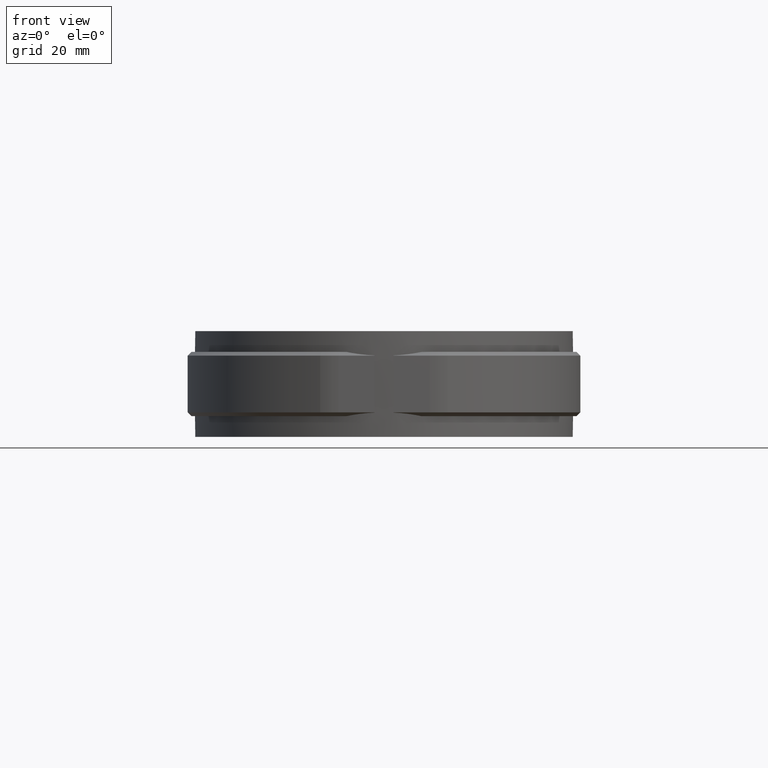
[diagram: clean part render]
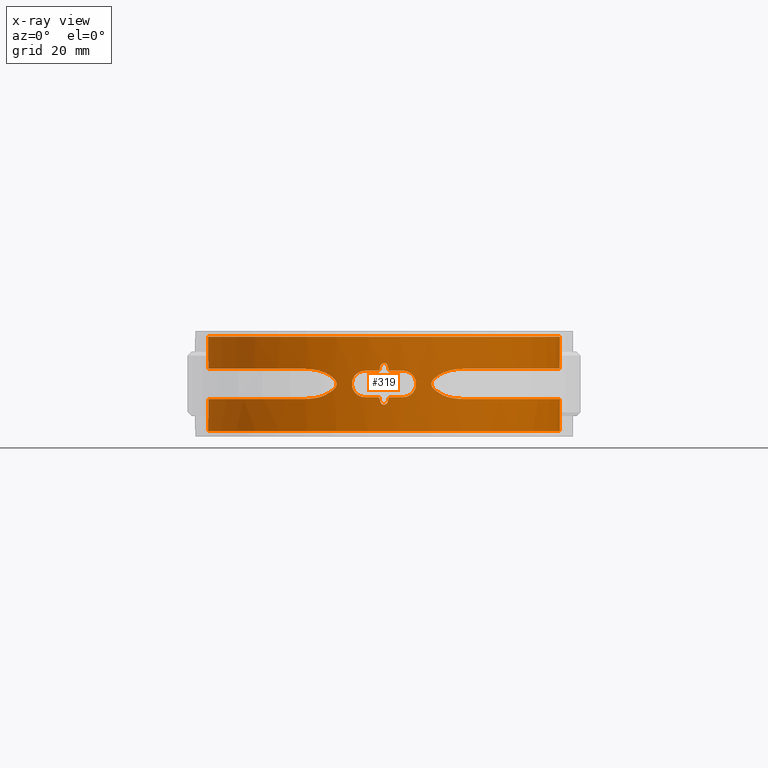
[diagram: x-ray — body ghosted, one internal face saturated and labeled with its STEP entity id]
A machine part, front view, then the same camera in x-ray: the body is ghosted and one INTERNAL B-rep face — a face not visible from any outside direction — is saturated and labeled: STEP entity #319.
In plain terms, the highlighted cylindrical surface (partial cylindrical patch) has radius 46.55 mm, axis along (0, 0, -1).
Its self-contained STEP definition (entity closure, byte-faithful):
#319 = ADVANCED_FACE( '', ( #536, #537 ), #538, .F. );
#536 = FACE_BOUND( '', #990, .T. );
#537 = FACE_OUTER_BOUND( '', #991, .T. );
#538 = CYLINDRICAL_SURFACE( '', #992, 46.5500000000000 );
#990 = EDGE_LOOP( '', ( #2028, #2029, #2030, #2031, #2032, #2033, #2034, #2035, #2036, #2037, #2038, #2039, #2040, #2041, #2042, #2043 ) );
#991 = EDGE_LOOP( '', ( #2044, #2045, #2046, #2047, #2048, #2049, #2050, #2051, #2052, #2053, #2054, #2055, #2056, #2057, #2058, #2059 ) );
#992 = AXIS2_PLACEMENT_3D( '', #2060, #2061, #2062 );
#2028 = ORIENTED_EDGE( '', *, *, #4347, .F. );
#2029 = ORIENTED_EDGE( '', *, *, #4348, .F. );
#2030 = ORIENTED_EDGE( '', *, *, #4349, .F. );
#2031 = ORIENTED_EDGE( '', *, *, #4350, .F. );
#2032 = ORIENTED_EDGE( '', *, *, #4351, .F. );
#2033 = ORIENTED_EDGE( '', *, *, #4352, .F. );
#2034 = ORIENTED_EDGE( '', *, *, #4353, .F. );
#2035 = ORIENTED_EDGE( '', *, *, #4354, .F. );
#2036 = ORIENTED_EDGE( '', *, *, #4355, .F. );
#2037 = ORIENTED_EDGE( '', *, *, #4356, .F. );
#2038 = ORIENTED_EDGE( '', *, *, #4357, .F. );
#2039 = ORIENTED_EDGE( '', *, *, #4358, .F. );
#2040 = ORIENTED_EDGE( '', *, *, #4359, .F. );
#2041 = ORIENTED_EDGE( '', *, *, #4360, .F. );
#2042 = ORIENTED_EDGE( '', *, *, #4344, .F. );
#2043 = ORIENTED_EDGE( '', *, *, #4340, .F. );
#2044 = ORIENTED_EDGE( '', *, *, #4361, .F. );
#2045 = ORIENTED_EDGE( '', *, *, #4362, .F. );
#2046 = ORIENTED_EDGE( '', *, *, #4363, .T. );
#2047 = ORIENTED_EDGE( '', *, *, #4364, .T. );
#2048 = ORIENTED_EDGE( '', *, *, #4365, .T. );
#2049 = ORIENTED_EDGE( '', *, *, #4366, .T. );
#2050 = ORIENTED_EDGE( '', *, *, #4367, .T. );
#2051 = ORIENTED_EDGE( '', *, *, #4368, .T. );
#2052 = ORIENTED_EDGE( '', *, *, #4369, .T. );
#2053 = ORIENTED_EDGE( '', *, *, #4370, .T. );
#2054 = ORIENTED_EDGE( '', *, *, #4371, .F. );
#2055 = ORIENTED_EDGE( '', *, *, #4372, .F. );
#2056 = ORIENTED_EDGE( '', *, *, #4373, .F. );
#2057 = ORIENTED_EDGE( '', *, *, #4374, .F. );
#2058 = ORIENTED_EDGE( '', *, *, #4375, .F. );
#2059 = ORIENTED_EDGE( '', *, *, #4376, .F. );
#2060 = CARTESIAN_POINT( '', ( 0.000000000000000, 0.000000000000000, -12.5000000000000 ) );
#2061 = DIRECTION( '', ( 0.000000000000000, 0.000000000000000, -1.00000000000000 ) );
#2062 = DIRECTION( '', ( -1.00000000000000, 6.16283340149655E-017, 0.000000000000000 ) );
#4340 = EDGE_CURVE( '', #4925, #4926, #4927, .T. );
#4344 = EDGE_CURVE( '', #4926, #4933, #4934, .T. );
#4347 = EDGE_CURVE( '', #4938, #4925, #4939, .T. );
#4348 = EDGE_CURVE( '', #4940, #4938, #4941, .T. );
#4349 = EDGE_CURVE( '', #4942, #4940, #4943, .T. );
#4350 = EDGE_CURVE( '', #4944, #4942, #4945, .T. );
#4351 = EDGE_CURVE( '', #4946, #4944, #4947, .T. );
#4352 = EDGE_CURVE( '', #4948, #4946, #4949, .T. );
#4353 = EDGE_CURVE( '', #4950, #4948, #4951, .T. );
#4354 = EDGE_CURVE( '', #4952, #4950, #4953, .T. );
#4355 = EDGE_CURVE( '', #4954, #4952, #4955, .T. );
#4356 = EDGE_CURVE( '', #4956, #4954, #4957, .T. );
#4357 = EDGE_CURVE( '', #4958, #4956, #4959, .T. );
#4358 = EDGE_CURVE( '', #4960, #4958, #4961, .T. );
#4359 = EDGE_CURVE( '', #4962, #4960, #4963, .T. );
#4360 = EDGE_CURVE( '', #4933, #4962, #4964, .T. );
#4361 = EDGE_CURVE( '', #4965, #4966, #4967, .T. );
#4362 = EDGE_CURVE( '', #4968, #4965, #4969, .T. );
#4363 = EDGE_CURVE( '', #4968, #4970, #4971, .T. );
#4364 = EDGE_CURVE( '', #4970, #4972, #4973, .T. );
#4365 = EDGE_CURVE( '', #4972, #4974, #4975, .T. );
#4366 = EDGE_CURVE( '', #4974, #4976, #4977, .T. );
#4367 = EDGE_CURVE( '', #4976, #4978, #4979, .T. );
#4368 = EDGE_CURVE( '', #4978, #4980, #4981, .T. );
#4369 = EDGE_CURVE( '', #4980, #4982, #4983, .T. );
#4370 = EDGE_CURVE( '', #4982, #4984, #4985, .T. );
#4371 = EDGE_CURVE( '', #4986, #4984, #4987, .T. );
#4372 = EDGE_CURVE( '', #4988, #4986, #4989, .T. );
#4373 = EDGE_CURVE( '', #4990, #4988, #4991, .T. );
#4374 = EDGE_CURVE( '', #4992, #4990, #4993, .T. );
#4375 = EDGE_CURVE( '', #4994, #4992, #4995, .T. );
#4376 = EDGE_CURVE( '', #4966, #4994, #4996, .T. );
#4925 = VERTEX_POINT( '', #5897 );
#4926 = VERTEX_POINT( '', #5898 );
#4927 = ELLIPSE( '', #5899, 212.061219288384, 46.5500000000000 );
#4933 = VERTEX_POINT( '', #5907 );
#4934 = B_SPLINE_CURVE_WITH_KNOTS( '', 3, ( #5908, #5909, #5910, #5911, #5912, #5913 ), .UNSPECIFIED., .F., .F., ( 4, 2, 4 ), ( 0.000000000000000, 0.000335867643567258, 0.000671735287134516 ), .UNSPECIFIED. );
#4938 = VERTEX_POINT( '', #5923 );
#4939 = B_SPLINE_CURVE_WITH_KNOTS( '', 3, ( #5924, #5925, #5926, #5927, #5928, #5929, #5930, #5931, #5932, #5933 ), .UNSPECIFIED., .F., .F., ( 4, 2, 2, 2, 4 ), ( 9.26342742239755E-019, 0.000671567789988738, 0.00134313557997747, 0.00201470336996621, 0.00268627115995495 ), .UNSPECIFIED. );
#4940 = VERTEX_POINT( '', #5934 );
#4941 = ELLIPSE( '', #5935, 212.061327465736, 46.5500000000000 );
#4942 = VERTEX_POINT( '', #5936 );
#4943 = B_SPLINE_CURVE_WITH_KNOTS( '', 3, ( #5937, #5938, #5939, #5940, #5941, #5942 ), .UNSPECIFIED., .F., .F., ( 4, 2, 4 ), ( 5.70418124105125E-018, 0.000335865768424954, 0.000671731536849902 ), .UNSPECIFIED. );
#4944 = VERTEX_POINT( '', #5943 );
#4945 = CIRCLE( '', #5944, 46.5500000000000 );
#4946 = VERTEX_POINT( '', #5945 );
#4947 = B_SPLINE_CURVE_WITH_KNOTS( '', 3, ( #5946, #5947, #5948, #5949, #5950, #5951, #5952, #5953, #5954, #5955, #5956, #5957, #5958, #5959, #5960, #5961, #5962, #5963, #5964, #5965, #5966, #5967, #5968, #5969, #5970, #5971, #5972, #5973, #5974, #5975, #5976, #5977, #5978, #5979 ), .UNSPECIFIED., .F., .F., ( 4, 2, 2, 2, 2, 2, 2, 2, 2, 2, 2, 2, 2, 2, 2, 2, 4 ), ( 8.67361737988404E-019, 0.000687134771177364, 0.00137426954235473, 0.00206140431353209, 0.00274853908470945, 0.00343567385588681, 0.00412280862706418, 0.00480994339824154, 0.00549707816941891, 0.00618421294059627, 0.00687134771177364, 0.00755848248295100, 0.00824561725412837, 0.00893275202530574, 0.00961988679648311, 0.0103070215676605, 0.0109941563388378 ), .UNSPECIFIED. );
#4948 = VERTEX_POINT( '', #5980 );
#4949 = CIRCLE( '', #5981, 46.5500000000000 );
#4950 = VERTEX_POINT( '', #5982 );
#4951 = B_SPLINE_CURVE_WITH_KNOTS( '', 3, ( #5983, #5984, #5985, #5986, #5987, #5988 ), .UNSPECIFIED., .F., .F., ( 4, 2, 4 ), ( 0.000000000000000, 0.000335867643567312, 0.000671735287134625 ), .UNSPECIFIED. );
#4952 = VERTEX_POINT( '', #5989 );
#4953 = ELLIPSE( '', #5990, 212.061219288399, 46.5500000000000 );
#4954 = VERTEX_POINT( '', #5991 );
#4955 = B_SPLINE_CURVE_WITH_KNOTS( '', 3, ( #5992, #5993, #5994, #5995, #5996, #5997, #5998, #5999, #6000, #6001 ), .UNSPECIFIED., .F., .F., ( 4, 2, 2, 2, 4 ), ( 1.08420217248550E-019, 0.000671567789988737, 0.00134313557997748, 0.00201470336996621, 0.00268627115995495 ), .UNSPECIFIED. );
#4956 = VERTEX_POINT( '', #6002 );
#4957 = ELLIPSE( '', #6003, 212.061327465781, 46.5500000000000 );
#4958 = VERTEX_POINT( '', #6004 );
#4959 = B_SPLINE_CURVE_WITH_KNOTS( '', 3, ( #6005, #6006, #6007, #6008, #6009, #6010 ), .UNSPECIFIED., .F., .F., ( 4, 2, 4 ), ( 6.50521303491303E-019, 0.000335865768424969, 0.000671731536849938 ), .UNSPECIFIED. );
#4960 = VERTEX_POINT( '', #6011 );
#4961 = CIRCLE( '', #6012, 46.5500000000000 );
#4962 = VERTEX_POINT( '', #6013 );
#4963 = B_SPLINE_CURVE_WITH_KNOTS( '', 3, ( #6014, #6015, #6016, #6017, #6018, #6019, #6020, #6021, #6022, #6023, #6024, #6025, #6026, #6027, #6028, #6029, #6030, #6031, #6032, #6033, #6034, #6035, #6036, #6037, #6038, #6039, #6040, #6041, #6042, #6043, #6044, #6045, #6046, #6047 ), .UNSPECIFIED., .F., .F., ( 4, 2, 2, 2, 2, 2, 2, 2, 2, 2, 2, 2, 2, 2, 2, 2, 4 ), ( 8.67361737988404E-019, 0.000687134771177362, 0.00137426954235472, 0.00206140431353208, 0.00274853908470944, 0.00343567385588681, 0.00412280862706417, 0.00480994339824153, 0.00549707816941889, 0.00618421294059625, 0.00687134771177361, 0.00755848248295097, 0.00824561725412833, 0.00893275202530569, 0.00961988679648305, 0.0103070215676604, 0.0109941563388378 ), .UNSPECIFIED. );
#4964 = CIRCLE( '', #6048, 46.5500000000000 );
#4965 = VERTEX_POINT( '', #6049 );
#4966 = VERTEX_POINT( '', #6050 );
#4967 = B_SPLINE_CURVE_WITH_KNOTS( '', 3, ( #6051, #6052, #6053, #6054, #6055, #6056, #6057, #6058, #6059, #6060, #6061, #6062, #6063, #6064, #6065, #6066, #6067, #6068, #6069, #6070, #6071, #6072, #6073, #6074, #6075, #6076, #6077, #6078, #6079, #6080, #6081, #6082, #6083, #6084, #6085, #6086, #6087, #6088, #6089, #6090, #6091, #6092, #6093, #6094, #6095, #6096, #6097, #6098, #6099, #6100, #6101, #6102, #6103, #6104, #6105, #6106 ), .UNSPECIFIED., .F., .F., ( 4, 2, 2, 2, 2, 2, 2, 2, 2, 2, 2, 2, 2, 2, 2, 2, 2, 2, 2, 2, 2, 2, 2, 2, 2, 2, 2, 4 ), ( 0.000000000000000, 0.00739241022400136, 0.00924051278000170, 0.0110886153360020, 0.0147848204480027, 0.0221772306720042, 0.0258734357840049, 0.0295696408960056, 0.0369620511200070, 0.0406582562320077, 0.0425063587880080, 0.0443544613440084, 0.0517468715680098, 0.0554430766800105, 0.0591392817920112, 0.0665316920160126, 0.0702278971280133, 0.0720759996840137, 0.0739241022400140, 0.0813165124640154, 0.0887089226880168, 0.0924051278000175, 0.0961013329120182, 0.103493743136020, 0.105341845692020, 0.107189948248020, 0.110886153360021, 0.118278563584022 ), .UNSPECIFIED. );
#4968 = VERTEX_POINT( '', #6107 );
#4969 = LINE( '', #6108, #6109 );
#4970 = VERTEX_POINT( '', #6110 );
#4971 = CIRCLE( '', #6111, 46.5500000000000 );
#4972 = VERTEX_POINT( '', #6112 );
#4973 = LINE( '', #6113, #6114 );
#4974 = VERTEX_POINT( '', #6115 );
#4975 = B_SPLINE_CURVE_WITH_KNOTS( '', 3, ( #6116, #6117, #6118, #6119, #6120, #6121, #6122, #6123, #6124, #6125, #6126, #6127, #6128, #6129, #6130, #6131, #6132, #6133, #6134, #6135, #6136, #6137, #6138, #6139, #6140, #6141, #6142, #6143, #6144, #6145, #6146, #6147, #6148, #6149, #6150, #6151, #6152, #6153, #6154, #6155, #6156, #6157, #6158, #6159, #6160, #6161, #6162, #6163, #6164, #6165, #6166, #6167, #6168, #6169 ), .UNSPECIFIED., .F., .F., ( 4, 2, 2, 2, 2, 2, 2, 2, 2, 2, 2, 2, 2, 2, 2, 2, 2, 2, 2, 2, 2, 2, 2, 2, 2, 2, 4 ), ( 0.00461311502875988, 0.00831044911400739, 0.0120077831992549, 0.0194024513697499, 0.0230997854549974, 0.0249484524976212, 0.0267971195402449, 0.0341917877107399, 0.0415864558812349, 0.0489811240517299, 0.0563757922222249, 0.0582244592648486, 0.0600731263074724, 0.0637704603927199, 0.0711651285632149, 0.0748624626484624, 0.0785597967337099, 0.0859544649042049, 0.0878031319468287, 0.0896517989894524, 0.0933491330746999, 0.100743801245195, 0.104441135330442, 0.108138469415690, 0.115533137586185, 0.119230471671432, 0.122927805756680 ), .UNSPECIFIED. );
#4976 = VERTEX_POINT( '', #6170 );
#4977 = B_SPLINE_CURVE_WITH_KNOTS( '', 3, ( #6171, #6172, #6173, #6174, #6175, #6176, #6177, #6178, #6179, #6180 ), .UNSPECIFIED., .F., .F., ( 4, 2, 2, 2, 4 ), ( 0.000000000000000, 0.00149632237868849, 0.00299264475737698, 0.00448896713606547, 0.00598528951475396 ), .UNSPECIFIED. );
#4978 = VERTEX_POINT( '', #6181 );
#4979 = B_SPLINE_CURVE_WITH_KNOTS( '', 3, ( #6182, #6183, #6184, #6185, #6186, #6187, #6188, #6189, #6190, #6191, #6192, #6193, #6194, #6195, #6196, #6197, #6198, #6199, #6200, #6201, #6202, #6203, #6204, #6205, #6206, #6207, #6208, #6209, #6210, #6211 ), .UNSPECIFIED., .F., .F., ( 4, 2, 2, 2, 2, 2, 2, 2, 2, 2, 2, 2, 2, 2, 4 ), ( 0.000000000000000, 0.00112011935832342, 0.00224023871664684, 0.00280029839580855, 0.00336035807497026, 0.00392041775413197, 0.00420044759371283, 0.00448047743329368, 0.00476050727287454, 0.00504053711245539, 0.00560059679161710, 0.00616065647077881, 0.00672071614994052, 0.00784083550826393, 0.00896095486658735 ), .UNSPECIFIED. );
#4980 = VERTEX_POINT( '', #6212 );
#4981 = B_SPLINE_CURVE_WITH_KNOTS( '', 3, ( #6213, #6214, #6215, #6216, #6217, #6218, #6219, #6220, #6221, #6222 ), .UNSPECIFIED., .F., .F., ( 4, 2, 2, 2, 4 ), ( 0.000000000000000, 0.00149513425753580, 0.00299026851507159, 0.00448540277260739, 0.00598053703014319 ), .UNSPECIFIED. );
#4982 = VERTEX_POINT( '', #6223 );
#4983 = B_SPLINE_CURVE_WITH_KNOTS( '', 3, ( #6224, #6225, #6226, #6227, #6228, #6229, #6230, #6231, #6232, #6233, #6234, #6235, #6236, #6237, #6238, #6239, #6240, #6241, #6242, #6243, #6244, #6245, #6246, #6247, #6248, #6249, #6250, #6251, #6252, #6253, #6254, #6255, #6256, #6257, #6258, #6259, #6260, #6261, #6262, #6263, #6264, #6265, #6266, #6267, #6268, #6269, #6270, #6271, #6272, #6273, #6274, #6275, #6276, #6277, #6278, #6279 ), .UNSPECIFIED., .F., .F., ( 4, 2, 2, 2, 2, 2, 2, 2, 2, 2, 2, 2, 2, 2, 2, 2, 2, 2, 2, 2, 2, 2, 2, 2, 2, 2, 2, 4 ), ( 0.000000000000000, 0.00739525285955345, 0.00924406607444182, 0.0110928792893302, 0.0147905057191069, 0.0221857585786603, 0.0258833850084370, 0.0295810114382137, 0.0369762642977672, 0.0406738907275439, 0.0425227039424322, 0.0443715171573206, 0.0517667700168740, 0.0554643964466508, 0.0591620228764275, 0.0665572757359809, 0.0702549021657576, 0.0721037153806460, 0.0739525285955343, 0.0813477814550877, 0.0887430343146411, 0.0924406607444178, 0.0961382871741946, 0.103533540033748, 0.105382353248636, 0.107231166463525, 0.110928792893301, 0.118324045752855 ), .UNSPECIFIED. );
#4984 = VERTEX_POINT( '', #6280 );
#4985 = LINE( '', #6281, #6282 );
#4986 = VERTEX_POINT( '', #6283 );
#4987 = CIRCLE( '', #6284, 46.5500000000000 );
#4988 = VERTEX_POINT( '', #6285 );
#4989 = LINE( '', #6286, #6287 );
#4990 = VERTEX_POINT( '', #6288 );
#4991 = B_SPLINE_CURVE_WITH_KNOTS( '', 3, ( #6289, #6290, #6291, #6292, #6293, #6294, #6295, #6296, #6297, #6298, #6299, #6300, #6301, #6302, #6303, #6304, #6305, #6306, #6307, #6308, #6309, #6310, #6311, #6312, #6313, #6314, #6315, #6316, #6317, #6318, #6319, #6320, #6321, #6322, #6323, #6324, #6325, #6326, #6327, #6328, #6329, #6330, #6331, #6332, #6333, #6334, #6335, #6336, #6337, #6338, #6339, #6340, #6341, #6342, #6343, #6344 ), .UNSPECIFIED., .F., .F., ( 4, 2, 2, 2, 2, 2, 2, 2, 2, 2, 2, 2, 2, 2, 2, 2, 2, 2, 2, 2, 2, 2, 2, 2, 2, 2, 2, 4 ), ( 0.000000000000000, 0.00739525285955343, 0.00924406607444180, 0.0110928792893302, 0.0147905057191069, 0.0221857585786603, 0.0258833850084371, 0.0295810114382138, 0.0369762642977672, 0.0406738907275439, 0.0425227039424323, 0.0443715171573206, 0.0517667700168741, 0.0554643964466508, 0.0591620228764275, 0.0665572757359810, 0.0702549021657577, 0.0721037153806461, 0.0739525285955344, 0.0813477814550878, 0.0887430343146412, 0.0924406607444179, 0.0961382871741946, 0.103533540033748, 0.105382353248636, 0.107231166463525, 0.110928792893301, 0.118324045752855 ), .UNSPECIFIED. );
#4992 = VERTEX_POINT( '', #6345 );
#4993 = B_SPLINE_CURVE_WITH_KNOTS( '', 3, ( #6346, #6347, #6348, #6349, #6350, #6351, #6352, #6353, #6354, #6355 ), .UNSPECIFIED., .F., .F., ( 4, 2, 2, 2, 4 ), ( 0.000000000000000, 0.00149513425753580, 0.00299026851507159, 0.00448540277260739, 0.00598053703014319 ), .UNSPECIFIED. );
#4994 = VERTEX_POINT( '', #6356 );
#4995 = B_SPLINE_CURVE_WITH_KNOTS( '', 3, ( #6357, #6358, #6359, #6360, #6361, #6362, #6363, #6364, #6365, #6366, #6367, #6368, #6369, #6370, #6371, #6372, #6373, #6374, #6375, #6376, #6377, #6378, #6379, #6380, #6381, #6382, #6383, #6384, #6385, #6386 ), .UNSPECIFIED., .F., .F., ( 4, 2, 2, 2, 2, 2, 2, 2, 2, 2, 2, 2, 2, 2, 4 ), ( 0.000000000000000, 0.00112011935832342, 0.00224023871664684, 0.00280029839580855, 0.00336035807497026, 0.00392041775413197, 0.00420044759371283, 0.00448047743329368, 0.00476050727287454, 0.00504053711245539, 0.00560059679161710, 0.00616065647077881, 0.00672071614994052, 0.00784083550826393, 0.00896095486658735 ), .UNSPECIFIED. );
#4996 = B_SPLINE_CURVE_WITH_KNOTS( '', 3, ( #6387, #6388, #6389, #6390, #6391, #6392, #6393, #6394, #6395, #6396 ), .UNSPECIFIED., .F., .F., ( 4, 2, 2, 2, 4 ), ( 0.000000000000000, 0.00149632237868849, 0.00299264475737698, 0.00448896713606547, 0.00598528951475396 ), .UNSPECIFIED. );
#5897 = CARTESIAN_POINT( '', ( -0.975609757981835, -46.5397753067216, -4.71951218674743 ) );
#5898 = CARTESIAN_POINT( '', ( -1.16219500000001, -46.5354897124977, -3.89024399999999 ) );
#5899 = AXIS2_PLACEMENT_3D( '', #8972, #8973, #8974 );
#5907 = CARTESIAN_POINT( '', ( -1.64999999999996, -46.5207480593337, -3.49999999999999 ) );
#5908 = CARTESIAN_POINT( '', ( -1.16219500000001, -46.5354897124977, -3.89024399999999 ) );
#5909 = CARTESIAN_POINT( '', ( -1.18712420397179, -46.5348671210865, -3.77944753568268 ) );
#5910 = CARTESIAN_POINT( '', ( -1.24903650881785, -46.5333243537973, -3.68044081312041 ) );
#5911 = CARTESIAN_POINT( '', ( -1.42636241158842, -46.5282264640173, -3.53861514028637 ) );
#5912 = CARTESIAN_POINT( '', ( -1.53650490240857, -46.5247735085975, -3.49999999951289 ) );
#5913 = CARTESIAN_POINT( '', ( -1.64999999999996, -46.5207480593337, -3.50000000000000 ) );
#5923 = CARTESIAN_POINT( '', ( 0.975609999999998, -46.5397753016481, -4.71951200000000 ) );
#5924 = CARTESIAN_POINT( '', ( 0.975609999999998, -46.5397753016482, -4.71951200000000 ) );
#5925 = CARTESIAN_POINT( '', ( 0.925763811660467, -46.5408202237495, -4.94105072272846 ) );
#5926 = CARTESIAN_POINT( '', ( 0.802006513264279, -46.5434284211128, -5.13901837189036 ) );
#5927 = CARTESIAN_POINT( '', ( 0.447391365684778, -46.5481877692836, -5.42271325637587 ) );
#5928 = CARTESIAN_POINT( '', ( 0.227079142415347, -46.5500000006644, -5.50000005706915 ) );
#5929 = CARTESIAN_POINT( '', ( -0.227079414810581, -46.5499999993356, -5.49999994979800 ) );
#5930 = CARTESIAN_POINT( '', ( -0.447400186077757, -46.5481876660238, -5.42270759232652 ) );
#5931 = CARTESIAN_POINT( '', ( -0.802005630293599, -46.5434284178428, -5.13901736590035 ) );
#5932 = CARTESIAN_POINT( '', ( -0.925763527024686, -46.5408202294570, -4.94105090087471 ) );
#5933 = CARTESIAN_POINT( '', ( -0.975609757981835, -46.5397753067216, -4.71951218674743 ) );
#5934 = CARTESIAN_POINT( '', ( 1.16219512100914, -46.5354897094755, -3.89024390662629 ) );
#5935 = AXIS2_PLACEMENT_3D( '', #8981, #8982, #8983 );
#5936 = CARTESIAN_POINT( '', ( 1.65000000000002, -46.5207480593337, -3.49999999999999 ) );
#5937 = CARTESIAN_POINT( '', ( 1.65000000000002, -46.5207480593337, -3.50000000000002 ) );
#5938 = CARTESIAN_POINT( '', ( 1.53650492986797, -46.5247735076236, -3.50000000000002 ) );
#5939 = CARTESIAN_POINT( '', ( 1.42636231025923, -46.5282264652820, -3.53861554993225 ) );
#5940 = CARTESIAN_POINT( '', ( 1.24903833890374, -46.5333243028331, -3.68043909286674 ) );
#5941 = CARTESIAN_POINT( '', ( 1.18712431856231, -46.5348671181598, -3.77944746861569 ) );
#5942 = CARTESIAN_POINT( '', ( 1.16219512100914, -46.5354897094755, -3.89024390662629 ) );
#5943 = CARTESIAN_POINT( '', ( 5.00000000000004, -46.2806925185870, -3.49999999999999 ) );
#5944 = AXIS2_PLACEMENT_3D( '', #8984, #8985, #8986 );
#5945 = CARTESIAN_POINT( '', ( 5.00000000000004, -46.2806925185870, 3.50000000000001 ) );
#5946 = CARTESIAN_POINT( '', ( 5.00000000000005, -46.2806925185870, 3.50000000000000 ) );
#5947 = CARTESIAN_POINT( '', ( 5.23101424725128, -46.2557345680164, 3.50000000000000 ) );
#5948 = CARTESIAN_POINT( '', ( 5.45798688627984, -46.2294648070248, 3.47735417320556 ) );
#5949 = CARTESIAN_POINT( '', ( 5.90423554468161, -46.1745930120415, 3.38882016543352 ) );
#5950 = CARTESIAN_POINT( '', ( 6.12575625310973, -46.1456732050923, 3.32189913692397 ) );
#5951 = CARTESIAN_POINT( '', ( 6.54860903964377, -46.0875662719305, 3.14708612205728 ) );
#5952 = CARTESIAN_POINT( '', ( 6.74913194916253, -46.0585339927889, 3.04014833053229 ) );
#5953 = CARTESIAN_POINT( '', ( 7.12869562067263, -46.0013155722736, 2.78758307530890 ) );
#5954 = CARTESIAN_POINT( '', ( 7.30868713323899, -45.9729526051980, 2.64044435126905 ) );
#5955 = CARTESIAN_POINT( '', ( 7.63173027795680, -45.9204308757645, 2.31861562045488 ) );
#5956 = CARTESIAN_POINT( '', ( 7.77679320521374, -45.8959793147898, 2.14295842760768 ) );
#5957 = CARTESIAN_POINT( '', ( 8.03324278500659, -45.8517877533408, 1.76133175017698 ) );
#5958 = CARTESIAN_POINT( '', ( 8.14289242043931, -45.8323441894987, 1.55705653946266 ) );
#5959 = CARTESIAN_POINT( '', ( 8.31863855610540, -45.8007720835402, 1.13526911675996 ) );
#5960 = CARTESIAN_POINT( '', ( 8.38623987158776, -45.7883787014959, 0.914916126865256 ) );
#5961 = CARTESIAN_POINT( '', ( 8.47729974651430, -45.7716072724474, 0.460519771584721 ) );
#5962 = CARTESIAN_POINT( '', ( 8.49980279502249, -45.7674103755657, 0.232266715548746 ) );
#5963 = CARTESIAN_POINT( '', ( 8.50019464909964, -45.7673375997242, -0.226284885958611 ) );
#5964 = CARTESIAN_POINT( '', ( 8.47736465282512, -45.7715947026079, -0.459162923809960 ) );
#5965 = CARTESIAN_POINT( '', ( 8.38737811139793, -45.7881696674285, -0.910255485971627 ) );
#5966 = CARTESIAN_POINT( '', ( 8.32081330275416, -45.8003775084187, -1.12917817948343 ) );
#5967 = CARTESIAN_POINT( '', ( 8.14459446912271, -45.8320422288435, -1.55382430716390 ) );
#5968 = CARTESIAN_POINT( '', ( 8.03450063987222, -45.8515640224239, -1.75894670944728 ) );
#5969 = CARTESIAN_POINT( '', ( 7.78038144641326, -45.8953678314364, -2.13812223048664 ) );
#5970 = CARTESIAN_POINT( '', ( 7.63547307573153, -45.9198155370585, -2.31464134562974 ) );
#5971 = CARTESIAN_POINT( '', ( 7.30865900001749, -45.9729639208650, -2.64071515189402 ) );
#5972 = CARTESIAN_POINT( '', ( 7.13210339171438, -46.0007847819863, -2.78493446076323 ) );
#5973 = CARTESIAN_POINT( '', ( 6.75376402296731, -46.0578524344199, -3.03743914761301 ) );
#5974 = CARTESIAN_POINT( '', ( 6.54961913161978, -46.0874221809350, -3.14658187784906 ) );
#5975 = CARTESIAN_POINT( '', ( 6.12700537486969, -46.1455068147413, -3.32146892987199 ) );
#5976 = CARTESIAN_POINT( '', ( 5.90948262079245, -46.1739247487791, -3.38746115223729 ) );
#5977 = CARTESIAN_POINT( '', ( 5.46202983718599, -46.2289902724368, -3.47686354707661 ) );
#5978 = CARTESIAN_POINT( '', ( 5.23101208102020, -46.2557348020482, -3.50000000000002 ) );
#5979 = CARTESIAN_POINT( '', ( 5.00000000000004, -46.2806925185871, -3.50000000000002 ) );
#5980 = CARTESIAN_POINT( '', ( 1.65000000000005, -46.5207480593337, 3.50000000000000 ) );
#5981 = AXIS2_PLACEMENT_3D( '', #8987, #8988, #8989 );
#5982 = CARTESIAN_POINT( '', ( 1.16219499999999, -46.5354897124976, 3.89024400000000 ) );
#5983 = CARTESIAN_POINT( '', ( 1.16219499999999, -46.5354897124977, 3.89024400000000 ) );
#5984 = CARTESIAN_POINT( '', ( 1.18712420397179, -46.5348671210865, 3.77944753568268 ) );
#5985 = CARTESIAN_POINT( '', ( 1.24903650881786, -46.5333243537973, 3.68044081312039 ) );
#5986 = CARTESIAN_POINT( '', ( 1.42636241158847, -46.5282264640173, 3.53861514028634 ) );
#5987 = CARTESIAN_POINT( '', ( 1.53650490240864, -46.5247735085975, 3.49999999951287 ) );
#5988 = CARTESIAN_POINT( '', ( 1.65000000000005, -46.5207480593337, 3.49999999999999 ) );
#5989 = CARTESIAN_POINT( '', ( 0.975609757981830, -46.5397753067216, 4.71951218674745 ) );
#5990 = AXIS2_PLACEMENT_3D( '', #8990, #8991, #8992 );
#5991 = CARTESIAN_POINT( '', ( -0.975610000000002, -46.5397753016482, 4.71951200000000 ) );
#5992 = CARTESIAN_POINT( '', ( -0.975610000000002, -46.5397753016482, 4.71951200000000 ) );
#5993 = CARTESIAN_POINT( '', ( -0.925763811660473, -46.5408202237495, 4.94105072272847 ) );
#5994 = CARTESIAN_POINT( '', ( -0.802006513264287, -46.5434284211128, 5.13901837189037 ) );
#5995 = CARTESIAN_POINT( '', ( -0.447391365684787, -46.5481877692836, 5.42271325637588 ) );
#5996 = CARTESIAN_POINT( '', ( -0.227079142415355, -46.5500000006644, 5.50000005706916 ) );
#5997 = CARTESIAN_POINT( '', ( 0.227079414810572, -46.5499999993356, 5.49999994979801 ) );
#5998 = CARTESIAN_POINT( '', ( 0.447400186077750, -46.5481876660238, 5.42270759232653 ) );
#5999 = CARTESIAN_POINT( '', ( 0.802005630293593, -46.5434284178428, 5.13901736590036 ) );
#6000 = CARTESIAN_POINT( '', ( 0.925763527024679, -46.5408202294570, 4.94105090087473 ) );
#6001 = CARTESIAN_POINT( '', ( 0.975609757981829, -46.5397753067216, 4.71951218674745 ) );
#6002 = CARTESIAN_POINT( '', ( -1.16219512100910, -46.5354897094755, 3.89024390662629 ) );
#6003 = AXIS2_PLACEMENT_3D( '', #8993, #8994, #8995 );
#6004 = CARTESIAN_POINT( '', ( -1.65000000000002, -46.5207480593337, 3.50000000000001 ) );
#6005 = CARTESIAN_POINT( '', ( -1.65000000000002, -46.5207480593337, 3.50000000000000 ) );
#6006 = CARTESIAN_POINT( '', ( -1.53650492986795, -46.5247735076236, 3.50000000000000 ) );
#6007 = CARTESIAN_POINT( '', ( -1.42636231025921, -46.5282264652820, 3.53861554993223 ) );
#6008 = CARTESIAN_POINT( '', ( -1.24903833890371, -46.5333243028331, 3.68043909286673 ) );
#6009 = CARTESIAN_POINT( '', ( -1.18712431856228, -46.5348671181598, 3.77944746861568 ) );
#6010 = CARTESIAN_POINT( '', ( -1.16219512100910, -46.5354897094755, 3.89024390662629 ) );
#6011 = CARTESIAN_POINT( '', ( -4.99999999999995, -46.2806925185871, 3.50000000000000 ) );
#6012 = AXIS2_PLACEMENT_3D( '', #8996, #8997, #8998 );
#6013 = CARTESIAN_POINT( '', ( -4.99999999999995, -46.2806925185871, -3.49999999999999 ) );
#6014 = CARTESIAN_POINT( '', ( -4.99999999999995, -46.2806925185871, -3.49999999999999 ) );
#6015 = CARTESIAN_POINT( '', ( -5.23101424725119, -46.2557345680164, -3.49999999999999 ) );
#6016 = CARTESIAN_POINT( '', ( -5.45798688627975, -46.2294648070249, -3.47735417320555 ) );
#6017 = CARTESIAN_POINT( '', ( -5.90423554468151, -46.1745930120415, -3.38882016543350 ) );
#6018 = CARTESIAN_POINT( '', ( -6.12575625310963, -46.1456732050924, -3.32189913692395 ) );
#6019 = CARTESIAN_POINT( '', ( -6.54860903964367, -46.0875662719305, -3.14708612205726 ) );
#6020 = CARTESIAN_POINT( '', ( -6.74913194916243, -46.0585339927889, -3.04014833053228 ) );
#6021 = CARTESIAN_POINT( '', ( -7.12869562067252, -46.0013155722736, -2.78758307530889 ) );
#6022 = CARTESIAN_POINT( '', ( -7.30868713323888, -45.9729526051980, -2.64044435126904 ) );
#6023 = CARTESIAN_POINT( '', ( -7.63173027795669, -45.9204308757646, -2.31861562045487 ) );
#6024 = CARTESIAN_POINT( '', ( -7.77679320521363, -45.8959793147898, -2.14295842760767 ) );
#6025 = CARTESIAN_POINT( '', ( -8.03324278500648, -45.8517877533408, -1.76133175017697 ) );
#6026 = CARTESIAN_POINT( '', ( -8.14289242043920, -45.8323441894987, -1.55705653946265 ) );
#6027 = CARTESIAN_POINT( '', ( -8.31863855610529, -45.8007720835402, -1.13526911675996 ) );
#6028 = CARTESIAN_POINT( '', ( -8.38623987158765, -45.7883787014959, -0.914916126865256 ) );
#6029 = CARTESIAN_POINT( '', ( -8.47729974651419, -45.7716072724474, -0.460519771584723 ) );
#6030 = CARTESIAN_POINT( '', ( -8.49980279502238, -45.7674103755657, -0.232266715548749 ) );
#6031 = CARTESIAN_POINT( '', ( -8.50019464909952, -45.7673375997242, 0.226284885958605 ) );
#6032 = CARTESIAN_POINT( '', ( -8.47736465282501, -45.7715947026079, 0.459162923809951 ) );
#6033 = CARTESIAN_POINT( '', ( -8.38737811139782, -45.7881696674285, 0.910255485971615 ) );
#6034 = CARTESIAN_POINT( '', ( -8.32081330275405, -45.8003775084188, 1.12917817948342 ) );
#6035 = CARTESIAN_POINT( '', ( -8.14459446912259, -45.8320422288435, 1.55382430716388 ) );
#6036 = CARTESIAN_POINT( '', ( -8.03450063987211, -45.8515640224239, 1.75894670944726 ) );
#6037 = CARTESIAN_POINT( '', ( -7.78038144641316, -45.8953678314364, 2.13812223048662 ) );
#6038 = CARTESIAN_POINT( '', ( -7.63547307573142, -45.9198155370585, 2.31464134562972 ) );
#6039 = CARTESIAN_POINT( '', ( -7.30865900001738, -45.9729639208651, 2.64071515189400 ) );
#6040 = CARTESIAN_POINT( '', ( -7.13210339171428, -46.0007847819863, 2.78493446076321 ) );
#6041 = CARTESIAN_POINT( '', ( -6.75376402296721, -46.0578524344199, 3.03743914761299 ) );
#6042 = CARTESIAN_POINT( '', ( -6.54961913161968, -46.0874221809350, 3.14658187784904 ) );
#6043 = CARTESIAN_POINT( '', ( -6.12700537486959, -46.1455068147413, 3.32146892987196 ) );
#6044 = CARTESIAN_POINT( '', ( -5.90948262079235, -46.1739247487791, 3.38746115223727 ) );
#6045 = CARTESIAN_POINT( '', ( -5.46202983718589, -46.2289902724368, 3.47686354707659 ) );
#6046 = CARTESIAN_POINT( '', ( -5.23101208102011, -46.2557348020482, 3.49999999999999 ) );
#6047 = CARTESIAN_POINT( '', ( -4.99999999999995, -46.2806925185871, 3.49999999999999 ) );
#6048 = AXIS2_PLACEMENT_3D( '', #8999, #9000, #9001 );
#6049 = CARTESIAN_POINT( '', ( 6.57618567103939, 46.0831453138782, -3.99547789453363 ) );
#6050 = CARTESIAN_POINT( '', ( 20.9286488140006, -41.5799738154699, -3.99749411284495 ) );
#6051 = CARTESIAN_POINT( '', ( 6.57618567103939, 46.0831453138782, -3.99547789453363 ) );
#6052 = CARTESIAN_POINT( '', ( 9.03007763106053, 45.7329684968260, -3.99397550587316 ) );
#6053 = CARTESIAN_POINT( '', ( 11.4349335122546, 45.1910634176170, -3.99297811472632 ) );
#6054 = CARTESIAN_POINT( '', ( 14.3805562555051, 44.2773369271465, -3.99377441429057 ) );
#6055 = CARTESIAN_POINT( '', ( 14.9666404066915, 44.0827038345628, -3.99401518021754 ) );
#6056 = CARTESIAN_POINT( '', ( 16.1326765619879, 43.6694612901885, -3.99461234227233 ) );
#6057 = CARTESIAN_POINT( '', ( 16.7132801183845, 43.4505485279413, -3.99496925358459 ) );
#6058 = CARTESIAN_POINT( '', ( 18.4335184960048, 42.7625244184172, -3.99608325858104 ) );
#6059 = CARTESIAN_POINT( '', ( 19.5553595893905, 42.2609760911114, -3.99689817422306 ) );
#6060 = CARTESIAN_POINT( '', ( 22.8478307663134, 40.6309965992631, -3.99805808182009 ) );
#6061 = CARTESIAN_POINT( '', ( 24.9458520686048, 39.3779915789106, -3.99627556149784 ) );
#6062 = CARTESIAN_POINT( '', ( 27.9466987309229, 37.2476756871808, -3.99467976945148 ) );
#6063 = CARTESIAN_POINT( '', ( 28.9226241460492, 36.4954815554455, -3.99431753541406 ) );
#6064 = CARTESIAN_POINT( '', ( 30.8235126338302, 34.9048625605316, -3.99422994355109 ) );
#6065 = CARTESIAN_POINT( '', ( 31.7358122132083, 34.0770500746909, -3.99450535032410 ) );
#6066 = CARTESIAN_POINT( '', ( 34.3617511578624, 31.4990639839532, -3.99594849957518 ) );
#6067 = CARTESIAN_POINT( '', ( 35.9650968863893, 29.6549093891415, -3.99787450118166 ) );
#6068 = CARTESIAN_POINT( '', ( 38.1502477906098, 26.7013282393679, -3.99718837088350 ) );
#6069 = CARTESIAN_POINT( '', ( 38.8418193240744, 25.6854336089159, -3.99648971199078 ) );
#6070 = CARTESIAN_POINT( '', ( 39.8225112222335, 24.1133071555025, -3.99547269593863 ) );
#6071 = CARTESIAN_POINT( '', ( 40.1404795432186, 23.5802048498777, -3.99513541023542 ) );
#6072 = CARTESIAN_POINT( '', ( 40.7521181978722, 22.5066439325902, -3.99455364906564 ) );
#6073 = CARTESIAN_POINT( '', ( 41.0463395848321, 21.9653871597278, -3.99430857407785 ) );
#6074 = CARTESIAN_POINT( '', ( 42.4603507377291, 19.2370667584880, -3.99343648326424 ) );
#6075 = CARTESIAN_POINT( '', ( 43.4099147327430, 16.9843032867978, -3.99416618747375 ) );
#6076 = CARTESIAN_POINT( '', ( 44.5657646454425, 13.5015299272903, -3.99614209631281 ) );
#6077 = CARTESIAN_POINT( '', ( 44.9060908560450, 12.3232539251376, -3.99688912487059 ) );
#6078 = CARTESIAN_POINT( '', ( 45.4949390093118, 9.93126919450842, -3.99763975321300 ) );
#6079 = CARTESIAN_POINT( '', ( 45.7439109135268, 8.71296139361782, -3.99744433822754 ) );
#6080 = CARTESIAN_POINT( '', ( 46.3392893475279, 5.06429564811052, -3.99581618573708 ) );
#6081 = CARTESIAN_POINT( '', ( 46.5401247727459, 2.62577617584301, -3.99405667683790 ) );
#6082 = CARTESIAN_POINT( '', ( 46.5544078574001, -1.04089511667609, -3.99375645471957 ) );
#6083 = CARTESIAN_POINT( '', ( 46.5111138711700, -2.26460791254344, -3.99398674170197 ) );
#6084 = CARTESIAN_POINT( '', ( 46.3729430905892, -4.10244619106728, -3.99470918688378 ) );
#6085 = CARTESIAN_POINT( '', ( 46.3146669435425, -4.71543757263763, -3.99500908599356 ) );
#6086 = CARTESIAN_POINT( '', ( 46.1733052170228, -5.94218906871573, -3.99566089352775 ) );
#6087 = CARTESIAN_POINT( '', ( 46.0899894530313, -6.55723223796914, -3.99601348828128 ) );
#6088 = CARTESIAN_POINT( '', ( 45.6141861750645, -9.61037345985058, -3.99764735618785 ) );
#6089 = CARTESIAN_POINT( '', ( 45.0448356084065, -11.9931877383663, -3.99744639585155 ) );
#6090 = CARTESIAN_POINT( '', ( 43.5415686627391, -16.6434841756177, -3.99501822717447 ) );
#6091 = CARTESIAN_POINT( '', ( 42.6076663022531, -18.9109708890668, -3.99394065808847 ) );
#6092 = CARTESIAN_POINT( '', ( 40.9220479357443, -22.2221146533687, -3.99452150650273 ) );
#6093 = CARTESIAN_POINT( '', ( 40.3184595575993, -23.2987162885596, -3.99502143158973 ) );
#6094 = CARTESIAN_POINT( '', ( 39.0349279067849, -25.3906038743601, -3.99621292266187 ) );
#6095 = CARTESIAN_POINT( '', ( 38.3542419186732, -26.4073418015268, -3.99690354125413 ) );
#6096 = CARTESIAN_POINT( '', ( 36.1969076007786, -29.3710516811370, -3.99798761667306 ) );
#6097 = CARTESIAN_POINT( '', ( 34.6057186585321, -31.2320718295634, -3.99620536808695 ) );
#6098 = CARTESIAN_POINT( '', ( 32.4195737713050, -33.4103982302208, -3.99454702965424 ) );
#6099 = CARTESIAN_POINT( '', ( 31.9714587968523, -33.8394853865084, -3.99425297559089 ) );
#6100 = CARTESIAN_POINT( '', ( 31.0612074588855, -34.6768848084515, -3.99380917975327 ) );
#6101 = CARTESIAN_POINT( '', ( 30.5989400065402, -35.0854161603209, -3.99365905708043 ) );
#6102 = CARTESIAN_POINT( '', ( 29.1909967284125, -36.2809100860056, -3.99346551922549 ) );
#6103 = CARTESIAN_POINT( '', ( 28.2242128815534, -37.0378193657550, -3.99369489464310 ) );
#6104 = CARTESIAN_POINT( '', ( 25.2404362265874, -39.1897678444993, -3.99520069605907 ) );
#6105 = CARTESIAN_POINT( '', ( 23.1405561887773, -40.4667934054787, -3.99755642162723 ) );
#6106 = CARTESIAN_POINT( '', ( 20.9263943139375, -41.5811077415887, -3.99748921381266 ) );
#6107 = CARTESIAN_POINT( '', ( 6.57618567103937, 46.0831453138782, -12.5000000000000 ) );
#6108 = CARTESIAN_POINT( '', ( 6.57618567103937, 46.0831453138782, -12.5000000000000 ) );
#6109 = VECTOR( '', #9002, 1000.00000000000 );
#6110 = CARTESIAN_POINT( '', ( -6.57618567103938, 46.0831453138782, -12.5000000000000 ) );
#6111 = AXIS2_PLACEMENT_3D( '', #9003, #9004, #9005 );
#6112 = CARTESIAN_POINT( '', ( -6.57618567103913, 46.0831453138782, -3.99547789453365 ) );
#6113 = CARTESIAN_POINT( '', ( -6.57618567103938, 46.0831453138782, -12.5000000000000 ) );
#6114 = VECTOR( '', #9006, 1000.00000000000 );
#6115 = CARTESIAN_POINT( '', ( -20.9286488140006, -41.5799738154699, -3.99749411284495 ) );
#6116 = CARTESIAN_POINT( '', ( -6.57618567103911, 46.0831453138782, -3.99547789453365 ) );
#6117 = CARTESIAN_POINT( '', ( -7.79632297725620, 45.9090285209555, -3.99473086879538 ) );
#6118 = CARTESIAN_POINT( '', ( -9.00910468267741, 45.6865948889093, -3.99403887498454 ) );
#6119 = CARTESIAN_POINT( '', ( -11.4198499503953, 45.1443899818926, -3.99332039211285 ) );
#6120 = CARTESIAN_POINT( '', ( -12.6207863616920, 44.8233919075175, -3.99329756965790 ) );
#6121 = CARTESIAN_POINT( '', ( -16.1511481065051, 43.7277458459871, -3.99425531369348 ) );
#6122 = CARTESIAN_POINT( '', ( -18.4232800629671, 42.8189847789983, -3.99647970188134 ) );
#6123 = CARTESIAN_POINT( '', ( -21.7120994698851, 41.1944448688833, -3.99766755206201 ) );
#6124 = CARTESIAN_POINT( '', ( -22.7883822007818, 40.6091593026496, -3.99745557448952 ) );
#6125 = CARTESIAN_POINT( '', ( -24.3723188817909, 39.6644739404611, -3.99670755815874 ) );
#6126 = CARTESIAN_POINT( '', ( -24.8952105889892, 39.3384396267006, -3.99640233604318 ) );
#6127 = CARTESIAN_POINT( '', ( -25.9306608265162, 38.6637449251087, -3.99578807986667 ) );
#6128 = CARTESIAN_POINT( '', ( -26.4440244646050, 38.3144598412882, -3.99547879704804 ) );
#6129 = CARTESIAN_POINT( '', ( -28.9630724007654, 36.5260337586358, -3.99413954383086 ) );
#6130 = CARTESIAN_POINT( '', ( -30.8412552011003, 34.9527498055939, -3.99402143436704 ) );
#6131 = CARTESIAN_POINT( '', ( -34.3324117938334, 31.5303542918644, -3.99592477199618 ) );
#6132 = CARTESIAN_POINT( '', ( -35.9454014086323, 29.6812591761527, -3.99787901917791 ) );
#6133 = CARTESIAN_POINT( '', ( -38.8947184649486, 25.6953284517253, -3.99695627378853 ) );
#6134 = CARTESIAN_POINT( '', ( -40.1917872055923, 23.6113987568380, -3.99484229079945 ) );
#6135 = CARTESIAN_POINT( '', ( -42.4437086821470, 19.2719875295483, -3.99344014261427 ) );
#6136 = CARTESIAN_POINT( '', ( -43.3988815240944, 17.0160306061889, -3.99414877091597 ) );
#6137 = CARTESIAN_POINT( '', ( -44.3723410225203, 14.0847243273335, -3.99581108354192 ) );
#6138 = CARTESIAN_POINT( '', ( -44.5562444706785, 13.4916855590510, -3.99616376794572 ) );
#6139 = CARTESIAN_POINT( '', ( -44.8987429734289, 12.3039578982187, -3.99679994815375 ) );
#6140 = CARTESIAN_POINT( '', ( -45.0576530072046, 11.7084772723963, -3.99708378468293 ) );
#6141 = CARTESIAN_POINT( '', ( -45.4979404465590, 9.91726037496617, -3.99764060557017 ) );
#6142 = CARTESIAN_POINT( '', ( -45.7429320499018, 8.71675655696067, -3.99744422230662 ) );
#6143 = CARTESIAN_POINT( '', ( -46.3347496524979, 5.09648743953796, -3.99583414002031 ) );
#6144 = CARTESIAN_POINT( '', ( -46.5393148515844, 2.65808184391516, -3.99406373182526 ) );
#6145 = CARTESIAN_POINT( '', ( -46.5547348217032, -1.03771246830005, -3.99375452764859 ) );
#6146 = CARTESIAN_POINT( '', ( -46.5104338970133, -2.28076327554145, -3.99399057311420 ) );
#6147 = CARTESIAN_POINT( '', ( -46.3245140895539, -4.73938147591315, -3.99496212404438 ) );
#6148 = CARTESIAN_POINT( '', ( -46.1832867530091, -5.95854995220556, -3.99569310415523 ) );
#6149 = CARTESIAN_POINT( '', ( -45.6179422355025, -9.58629321337310, -3.99763447649401 ) );
#6150 = CARTESIAN_POINT( '', ( -45.0530325573815, -11.9652886802108, -3.99746015862974 ) );
#6151 = CARTESIAN_POINT( '', ( -44.1089185192835, -14.8890360012924, -3.99593451667991 ) );
#6152 = CARTESIAN_POINT( '', ( -43.9081273654519, -15.4712710103828, -3.99561906765014 ) );
#6153 = CARTESIAN_POINT( '', ( -43.4822471177058, -16.6306362179029, -3.99505358887028 ) );
#6154 = CARTESIAN_POINT( '', ( -43.2566202608733, -17.2089960598075, -3.99480334779649 ) );
#6155 = CARTESIAN_POINT( '', ( -42.5481663978093, -18.9231340772025, -3.99424293736817 ) );
#6156 = CARTESIAN_POINT( '', ( -42.0332950807287, -20.0401176609930, -3.99413638141958 ) );
#6157 = CARTESIAN_POINT( '', ( -40.3643746323100, -23.3158016242793, -3.99471811623509 ) );
#6158 = CARTESIAN_POINT( '', ( -39.0867715011232, -25.3996908149604, -3.99652957734668 ) );
#6159 = CARTESIAN_POINT( '', ( -36.9222235318791, -28.3752759357703, -3.99762604558781 ) );
#6160 = CARTESIAN_POINT( '', ( -36.1591627804089, -29.3419826722768, -3.99748979208845 ) );
#6161 = CARTESIAN_POINT( '', ( -34.5474433422750, -31.2235673591695, -3.99635581855739 ) );
#6162 = CARTESIAN_POINT( '', ( -33.7070897010838, -32.1285162805309, -3.99552105204609 ) );
#6163 = CARTESIAN_POINT( '', ( -31.0967755983653, -34.7263713250594, -3.99354897986876 ) );
#6164 = CARTESIAN_POINT( '', ( -29.2333027052997, -36.3086145948411, -3.99319134608264 ) );
#6165 = CARTESIAN_POINT( '', ( -26.2545233577243, -38.4590983835139, -3.99468611125046 ) );
#6166 = CARTESIAN_POINT( '', ( -25.2308615219078, -39.1386090118971, -3.99545995779861 ) );
#6167 = CARTESIAN_POINT( '', ( -23.1205333023680, -40.4211334370764, -3.99687961743009 ) );
#6168 = CARTESIAN_POINT( '', ( -22.0338138111516, -41.0237801876028, -3.99752282799645 ) );
#6169 = CARTESIAN_POINT( '', ( -20.9263943139375, -41.5811077415887, -3.99748921381265 ) );
#6170 = CARTESIAN_POINT( '', ( -15.5498148485991, -43.8760277182678, -2.93790624463818 ) );
#6171 = CARTESIAN_POINT( '', ( -20.9293998333400, -41.5795950270825, -3.99749644907351 ) );
#6172 = CARTESIAN_POINT( '', ( -20.4830217366539, -41.8042827773193, -3.99536068955949 ) );
#6173 = CARTESIAN_POINT( '', ( -20.0341389428504, -42.0212231559072, -3.97621134593546 ) );
#6174 = CARTESIAN_POINT( '', ( -19.1316278337153, -42.4397306204009, -3.90083383557909 ) );
#6175 = CARTESIAN_POINT( '', ( -18.6771176133072, -42.6416527860660, -3.84449213679866 ) );
#6176 = CARTESIAN_POINT( '', ( -17.7703287590616, -43.0274411331140, -3.68579765647029 ) );
#6177 = CARTESIAN_POINT( '', ( -17.3162967960294, -43.2120284742330, -3.58331037715657 ) );
#6178 = CARTESIAN_POINT( '', ( -16.4203026048132, -43.5603856956348, -3.31549449910392 ) );
#6179 = CARTESIAN_POINT( '', ( -15.9795005107560, -43.7237231017341, -3.15098932625601 ) );
#6180 = CARTESIAN_POINT( '', ( -15.5518124347921, -43.8753191440592, -2.93889318125410 ) );
#6181 = CARTESIAN_POINT( '', ( -15.5498148482205, -43.8760277102935, 2.93790625569502 ) );
#6182 = CARTESIAN_POINT( '', ( -15.5491493065174, -43.8762630113783, -2.93757843643407 ) );
#6183 = CARTESIAN_POINT( '', ( -15.2281655410650, -43.9900152808616, -2.77982941865921 ) );
#6184 = CARTESIAN_POINT( '', ( -14.9123828066967, -44.0979427260361, -2.61062756143797 ) );
#6185 = CARTESIAN_POINT( '', ( -14.2964040445923, -44.3014733957685, -2.24062324922344 ) );
#6186 = CARTESIAN_POINT( '', ( -13.9958701026878, -44.3971604788651, -2.04040865200576 ) );
#6187 = CARTESIAN_POINT( '', ( -13.5664539443736, -44.5294987845646, -1.69976296937890 ) );
#6188 = CARTESIAN_POINT( '', ( -13.4272815449169, -44.5716193070242, -1.57946760348898 ) );
#6189 = CARTESIAN_POINT( '', ( -13.1656196757188, -44.6496091348075, -1.32379923175070 ) );
#6190 = CARTESIAN_POINT( '', ( -13.0424155456755, -44.6856932613913, -1.18815627977695 ) );
#6191 = CARTESIAN_POINT( '', ( -12.8209637868308, -44.7497337767948, -0.891698788185508 ) );
#6192 = CARTESIAN_POINT( '', ( -12.7223947947444, -44.7777691295155, -0.729666777691352 ) );
#6193 = CARTESIAN_POINT( '', ( -12.6159488370236, -44.8078307254879, -0.469139915298758 ) );
#6194 = CARTESIAN_POINT( '', ( -12.5870105429310, -44.8159578505040, -0.377953219044820 ) );
#6195 = CARTESIAN_POINT( '', ( -12.5479003279596, -44.8269239389186, -0.194176240585124 ) );
#6196 = CARTESIAN_POINT( '', ( -12.5374102969371, -44.8298543753804, -0.101217781872382 ) );
#6197 = CARTESIAN_POINT( '', ( -12.5364065896262, -44.8301350666171, 0.0870556080081845 ) );
#6198 = CARTESIAN_POINT( '', ( -12.5462809309273, -44.8273768969457, 0.182866079378025 ) );
#6199 = CARTESIAN_POINT( '', ( -12.5840503275821, -44.8167888409182, 0.367328713895901 ) );
#6200 = CARTESIAN_POINT( '', ( -12.6118039903760, -44.8089973185368, 0.457220295640606 ) );
#6201 = CARTESIAN_POINT( '', ( -12.7175143224317, -44.7791546570049, 0.720962587051063 ) );
#6202 = CARTESIAN_POINT( '', ( -12.8134920741696, -44.7518732156367, 0.880236721977413 ) );
#6203 = CARTESIAN_POINT( '', ( -13.0345370730647, -44.6879914376797, 1.17897155144159 ) );
#6204 = CARTESIAN_POINT( '', ( -13.1595218032553, -44.6514067780318, 1.31733604165988 ) );
#6205 = CARTESIAN_POINT( '', ( -13.4212224516188, -44.5734442157186, 1.57402940755340 ) );
#6206 = CARTESIAN_POINT( '', ( -13.5591014085171, -44.5317361978093, 1.69355141321013 ) );
#6207 = CARTESIAN_POINT( '', ( -13.9868645008976, -44.3999905475716, 2.03399203776578 ) );
#6208 = CARTESIAN_POINT( '', ( -14.2908995010023, -44.3032620411373, 2.23713955989431 ) );
#6209 = CARTESIAN_POINT( '', ( -14.9101729496381, -44.0987026866472, 2.60947519396367 ) );
#6210 = CARTESIAN_POINT( '', ( -15.2272277777508, -43.9903476113924, 2.77936855036363 ) );
#6211 = CARTESIAN_POINT( '', ( -15.5491493065175, -43.8762630113781, 2.93757843643663 ) );
#6212 = CARTESIAN_POINT( '', ( -20.9286488434310, -41.5799738673640, 3.99749406839688 ) );
#6213 = CARTESIAN_POINT( '', ( -15.5518124347923, -43.8753191440592, 2.93889318125605 ) );
#6214 = CARTESIAN_POINT( '', ( -15.9793885762472, -43.7237627774453, 3.15093381646196 ) );
#6215 = CARTESIAN_POINT( '', ( -16.4204827506553, -43.5603248606535, 3.31558720046619 ) );
#6216 = CARTESIAN_POINT( '', ( -17.3176646570202, -43.2114874374538, 3.58368031349205 ) );
#6217 = CARTESIAN_POINT( '', ( -17.7710280702271, -43.0271570578118, 3.68595712295428 ) );
#6218 = CARTESIAN_POINT( '', ( -18.6785697677823, -42.6410215001996, 3.84470910404746 ) );
#6219 = CARTESIAN_POINT( '', ( -19.1325080653768, -42.4393293458777, 3.90092198530146 ) );
#6220 = CARTESIAN_POINT( '', ( -20.0343233096961, -42.0211307525411, 3.97621209394320 ) );
#6221 = CARTESIAN_POINT( '', ( -20.4830341751068, -41.8042765163310, 3.99536074907503 ) );
#6222 = CARTESIAN_POINT( '', ( -20.9293998333401, -41.5795950270825, 3.99749644907552 ) );
#6223 = CARTESIAN_POINT( '', ( -6.57618567103939, 46.0831453138782, 3.99547789453564 ) );
#6224 = CARTESIAN_POINT( '', ( -20.9263943139375, -41.5811077415887, 3.99748921381466 ) );
#6225 = CARTESIAN_POINT( '', ( -23.1414079433622, -40.4663647456072, 3.99755644748307 ) );
#6226 = CARTESIAN_POINT( '', ( -25.2487298833116, -39.1854089605297, 3.99519005066093 ) );
#6227 = CARTESIAN_POINT( '', ( -27.7501302397838, -37.3793195521643, 3.99393580251915 ) );
#6228 = CARTESIAN_POINT( '', ( -28.2437330484107, -37.0077957397426, 3.99375008124338 ) );
#6229 = CARTESIAN_POINT( '', ( -29.2174712219234, -36.2439619443084, 3.99354732989247 ) );
#6230 = CARTESIAN_POINT( '', ( -29.6981207596642, -35.8511618500731, 3.99353069347443 ) );
#6231 = CARTESIAN_POINT( '', ( -31.1096128061550, -34.6499815537333, 3.99373891450447 ) );
#6232 = CARTESIAN_POINT( '', ( -32.0132322654730, -33.8165089421425, 3.99423569723973 ) );
#6233 = CARTESIAN_POINT( '', ( -34.6148076697067, -31.2205198300364, 3.99621858114980 ) );
#6234 = CARTESIAN_POINT( '', ( -36.2041444554582, -29.3630125431042, 3.99799245783603 ) );
#6235 = CARTESIAN_POINT( '', ( -38.3694473539788, -26.3854890060766, 3.99689160597645 ) );
#6236 = CARTESIAN_POINT( '', ( -39.0547257245722, -25.3607537495929, 3.99619341280442 ) );
#6237 = CARTESIAN_POINT( '', ( -40.3492336584772, -23.2460485963241, 3.99499404030796 ) );
#6238 = CARTESIAN_POINT( '', ( -40.9499396566371, -22.1700395537997, 3.99450510095832 ) );
#6239 = CARTESIAN_POINT( '', ( -42.6166473061537, -18.8877399172042, 3.99395155514725 ) );
#6240 = CARTESIAN_POINT( '', ( -43.5480522497621, -16.6275029491902, 3.99502787488874 ) );
#6241 = CARTESIAN_POINT( '', ( -44.6768099687569, -13.1295926549123, 3.99685235698145 ) );
#6242 = CARTESIAN_POINT( '', ( -45.0081330664128, -11.9456147684534, 3.99743856681091 ) );
#6243 = CARTESIAN_POINT( '', ( -45.4359511271623, -10.1419257910011, 3.99751244793702 ) );
#6244 = CARTESIAN_POINT( '', ( -45.5671868454209, -9.53498270072775, 3.99738049496895 ) );
#6245 = CARTESIAN_POINT( '', ( -45.8042526377322, -8.32195003634851, 3.99693969583558 ) );
#6246 = CARTESIAN_POINT( '', ( -45.9103580841626, -7.71488867906641, 3.99663448100716 ) );
#6247 = CARTESIAN_POINT( '', ( -46.3797036104429, -4.67689864656690, 3.99500092391377 ) );
#6248 = CARTESIAN_POINT( '', ( -46.5605368846672, -2.23797012976382, 3.99364899217262 ) );
#6249 = CARTESIAN_POINT( '', ( -46.5440252701942, 1.43304325477734, 3.99396382297366 ) );
#6250 = CARTESIAN_POINT( '', ( -46.4903383930425, 2.65882758186478, 3.99440019032080 ) );
#6251 = CARTESIAN_POINT( '', ( -46.2845616785590, 5.11471194040905, 3.99561676064122 ) );
#6252 = CARTESIAN_POINT( '', ( -46.1314353798479, 6.34923035063187, 3.99639885917054 ) );
#6253 = CARTESIAN_POINT( '', ( -45.5303999106561, 9.99817028148643, 3.99799844570169 ) );
#6254 = CARTESIAN_POINT( '', ( -44.9418153910235, 12.3740016718062, 3.99677959944101 ) );
#6255 = CARTESIAN_POINT( '', ( -43.7838887429654, 15.8546092208956, 3.99480822122614 ) );
#6256 = CARTESIAN_POINT( '', ( -43.3518542450911, 17.0008894788543, 3.99423947691279 ) );
#6257 = CARTESIAN_POINT( '', ( -42.6336046090244, 18.6990911659185, 3.99385769369326 ) );
#6258 = CARTESIAN_POINT( '', ( -42.3824747377332, 19.2616178100948, 3.99380545069372 ) );
#6259 = CARTESIAN_POINT( '', ( -41.8564308576674, 20.3794818730521, 3.99386342396289 ) );
#6260 = CARTESIAN_POINT( '', ( -41.5809036835669, 20.9359283016022, 3.99397425296072 ) );
#6261 = CARTESIAN_POINT( '', ( -40.1543562964633, 23.6779325593895, 3.99487867110627 ) );
#6262 = CARTESIAN_POINT( '', ( -38.8532167000759, 25.7547270804602, 3.99698968612554 ) );
#6263 = CARTESIAN_POINT( '', ( -35.9419318821823, 29.6825866040784, 3.99785935936994 ) );
#6264 = CARTESIAN_POINT( '', ( -34.3317998060117, 31.5336612616016, 3.99591607634798 ) );
#6265 = CARTESIAN_POINT( '', ( -31.6751521872399, 34.1338933691363, 3.99448033932086 ) );
#6266 = CARTESIAN_POINT( '', ( -30.7591063623903, 34.9612168354341, 3.99422156659083 ) );
#6267 = CARTESIAN_POINT( '', ( -28.8737889982371, 36.5337325729574, 3.99433183364680 ) );
#6268 = CARTESIAN_POINT( '', ( -27.9035384948343, 37.2798769942026, 3.99469915310633 ) );
#6269 = CARTESIAN_POINT( '', ( -24.9110490214729, 39.3994783416236, 3.99630142749521 ) );
#6270 = CARTESIAN_POINT( '', ( -22.8075947152183, 40.6548631455615, 3.99807551292851 ) );
#6271 = CARTESIAN_POINT( '', ( -20.0384234394312, 42.0207739926566, 3.99705990135088 ) );
#6272 = CARTESIAN_POINT( '', ( -19.4762937004128, 42.2842626163417, 3.99674607915080 ) );
#6273 = CARTESIAN_POINT( '', ( -18.3462116581411, 42.7866965201472, 3.99604448913450 ) );
#6274 = CARTESIAN_POINT( '', ( -17.7779047916784, 43.0258867114466, 3.99565706855947 ) );
#6275 = CARTESIAN_POINT( '', ( -16.0633421015309, 43.7079494472352, 3.99455196737590 ) );
#6276 = CARTESIAN_POINT( '', ( -14.9074592593969, 44.1153696590100, 3.99390751339718 ) );
#6277 = CARTESIAN_POINT( '', ( -11.4019585465658, 45.1982363393651, 3.99298852411714 ) );
#6278 = CARTESIAN_POINT( '', ( -9.01472487687410, 45.7351593751049, 3.99398490555703 ) );
#6279 = CARTESIAN_POINT( '', ( -6.57618567103940, 46.0831453138782, 3.99547789453561 ) );
#6280 = CARTESIAN_POINT( '', ( -6.57618567103938, 46.0831453138782, 12.5000000000000 ) );
#6281 = CARTESIAN_POINT( '', ( -6.57618567103938, 46.0831453138782, -12.5000000000000 ) );
#6282 = VECTOR( '', #9007, 1000.00000000000 );
#6283 = CARTESIAN_POINT( '', ( 6.57618567103937, 46.0831453138782, 12.5000000000000 ) );
#6284 = AXIS2_PLACEMENT_3D( '', #9008, #9009, #9010 );
#6285 = CARTESIAN_POINT( '', ( 6.57618567103937, 46.0831453138782, 3.99547789453562 ) );
#6286 = CARTESIAN_POINT( '', ( 6.57618567103937, 46.0831453138782, -12.5000000000000 ) );
#6287 = VECTOR( '', #9011, 1000.00000000000 );
#6288 = CARTESIAN_POINT( '', ( 20.9286488434310, -41.5799738673640, 3.99749406839688 ) );
#6289 = CARTESIAN_POINT( '', ( 20.9263943139375, -41.5811077415887, 3.99748921381466 ) );
#6290 = CARTESIAN_POINT( '', ( 23.1414079433622, -40.4663647456072, 3.99755644748307 ) );
#6291 = CARTESIAN_POINT( '', ( 25.2487298833116, -39.1854089605297, 3.99519005066092 ) );
#6292 = CARTESIAN_POINT( '', ( 27.7501302397838, -37.3793195521643, 3.99393580251915 ) );
#6293 = CARTESIAN_POINT( '', ( 28.2437330484107, -37.0077957397426, 3.99375008124338 ) );
#6294 = CARTESIAN_POINT( '', ( 29.2174712219234, -36.2439619443084, 3.99354732989247 ) );
#6295 = CARTESIAN_POINT( '', ( 29.6981207596642, -35.8511618500731, 3.99353069347443 ) );
#6296 = CARTESIAN_POINT( '', ( 31.1096128061550, -34.6499815537333, 3.99373891450446 ) );
#6297 = CARTESIAN_POINT( '', ( 32.0132322654729, -33.8165089421425, 3.99423569723972 ) );
#6298 = CARTESIAN_POINT( '', ( 34.6148076697067, -31.2205198300364, 3.99621858114979 ) );
#6299 = CARTESIAN_POINT( '', ( 36.2041444554581, -29.3630125431042, 3.99799245783604 ) );
#6300 = CARTESIAN_POINT( '', ( 38.3694473539788, -26.3854890060766, 3.99689160597646 ) );
#6301 = CARTESIAN_POINT( '', ( 39.0547257245722, -25.3607537495928, 3.99619341280443 ) );
#6302 = CARTESIAN_POINT( '', ( 40.3492336584772, -23.2460485963241, 3.99499404030797 ) );
#6303 = CARTESIAN_POINT( '', ( 40.9499396566371, -22.1700395537997, 3.99450510095832 ) );
#6304 = CARTESIAN_POINT( '', ( 42.6166473061537, -18.8877399172042, 3.99395155514725 ) );
#6305 = CARTESIAN_POINT( '', ( 43.5480522497621, -16.6275029491902, 3.99502787488874 ) );
#6306 = CARTESIAN_POINT( '', ( 44.6768099687568, -13.1295926549123, 3.99685235698144 ) );
#6307 = CARTESIAN_POINT( '', ( 45.0081330664128, -11.9456147684534, 3.99743856681092 ) );
#6308 = CARTESIAN_POINT( '', ( 45.4359511271623, -10.1419257910011, 3.99751244793703 ) );
#6309 = CARTESIAN_POINT( '', ( 45.5671868454210, -9.53498270072773, 3.99738049496894 ) );
#6310 = CARTESIAN_POINT( '', ( 45.8042526377323, -8.32195003634849, 3.99693969583558 ) );
#6311 = CARTESIAN_POINT( '', ( 45.9103580841626, -7.71488867906639, 3.99663448100715 ) );
#6312 = CARTESIAN_POINT( '', ( 46.3797036104429, -4.67689864656689, 3.99500092391376 ) );
#6313 = CARTESIAN_POINT( '', ( 46.5605368846672, -2.23797012976381, 3.99364899217262 ) );
#6314 = CARTESIAN_POINT( '', ( 46.5440252701942, 1.43304325477736, 3.99396382297366 ) );
#6315 = CARTESIAN_POINT( '', ( 46.4903383930425, 2.65882758186479, 3.99440019032081 ) );
#6316 = CARTESIAN_POINT( '', ( 46.2845616785589, 5.11471194040907, 3.99561676064123 ) );
#6317 = CARTESIAN_POINT( '', ( 46.1314353798479, 6.34923035063189, 3.99639885917054 ) );
#6318 = CARTESIAN_POINT( '', ( 45.5303999106561, 9.99817028148643, 3.99799844570170 ) );
#6319 = CARTESIAN_POINT( '', ( 44.9418153910234, 12.3740016718062, 3.99677959944102 ) );
#6320 = CARTESIAN_POINT( '', ( 43.7838887429653, 15.8546092208956, 3.99480822122616 ) );
#6321 = CARTESIAN_POINT( '', ( 43.3518542450911, 17.0008894788543, 3.99423947691279 ) );
#6322 = CARTESIAN_POINT( '', ( 42.6336046090244, 18.6990911659186, 3.99385769369326 ) );
#6323 = CARTESIAN_POINT( '', ( 42.3824747377331, 19.2616178100948, 3.99380545069373 ) );
#6324 = CARTESIAN_POINT( '', ( 41.8564308576674, 20.3794818730521, 3.99386342396289 ) );
#6325 = CARTESIAN_POINT( '', ( 41.5809036835669, 20.9359283016022, 3.99397425296072 ) );
#6326 = CARTESIAN_POINT( '', ( 40.1543562964633, 23.6779325593895, 3.99487867110627 ) );
#6327 = CARTESIAN_POINT( '', ( 38.8532167000759, 25.7547270804602, 3.99698968612555 ) );
#6328 = CARTESIAN_POINT( '', ( 35.9419318821822, 29.6825866040784, 3.99785935936994 ) );
#6329 = CARTESIAN_POINT( '', ( 34.3317998060117, 31.5336612616017, 3.99591607634798 ) );
#6330 = CARTESIAN_POINT( '', ( 31.6751521872398, 34.1338933691363, 3.99448033932086 ) );
#6331 = CARTESIAN_POINT( '', ( 30.7591063623903, 34.9612168354341, 3.99422156659084 ) );
#6332 = CARTESIAN_POINT( '', ( 28.8737889982371, 36.5337325729574, 3.99433183364680 ) );
#6333 = CARTESIAN_POINT( '', ( 27.9035384948343, 37.2798769942026, 3.99469915310632 ) );
#6334 = CARTESIAN_POINT( '', ( 24.9110490214729, 39.3994783416237, 3.99630142749520 ) );
#6335 = CARTESIAN_POINT( '', ( 22.8075947152182, 40.6548631455615, 3.99807551292851 ) );
#6336 = CARTESIAN_POINT( '', ( 20.0384234394312, 42.0207739926567, 3.99705990135088 ) );
#6337 = CARTESIAN_POINT( '', ( 19.4762937004128, 42.2842626163417, 3.99674607915080 ) );
#6338 = CARTESIAN_POINT( '', ( 18.3462116581411, 42.7866965201472, 3.99604448913449 ) );
#6339 = CARTESIAN_POINT( '', ( 17.7779047916783, 43.0258867114467, 3.99565706855947 ) );
#6340 = CARTESIAN_POINT( '', ( 16.0633421015309, 43.7079494472353, 3.99455196737589 ) );
#6341 = CARTESIAN_POINT( '', ( 14.9074592593969, 44.1153696590100, 3.99390751339718 ) );
#6342 = CARTESIAN_POINT( '', ( 11.4019585465657, 45.1982363393651, 3.99298852411713 ) );
#6343 = CARTESIAN_POINT( '', ( 9.01472487687405, 45.7351593751049, 3.99398490555703 ) );
#6344 = CARTESIAN_POINT( '', ( 6.57618567103933, 46.0831453138782, 3.99547789453562 ) );
#6345 = CARTESIAN_POINT( '', ( 15.5498148482205, -43.8760277102935, 2.93790625569502 ) );
#6346 = CARTESIAN_POINT( '', ( 15.5518124347923, -43.8753191440592, 2.93889318125605 ) );
#6347 = CARTESIAN_POINT( '', ( 15.9793885762472, -43.7237627774453, 3.15093381646196 ) );
#6348 = CARTESIAN_POINT( '', ( 16.4204827506553, -43.5603248606535, 3.31558720046619 ) );
#6349 = CARTESIAN_POINT( '', ( 17.3176646570202, -43.2114874374538, 3.58368031349205 ) );
#6350 = CARTESIAN_POINT( '', ( 17.7710280702271, -43.0271570578118, 3.68595712295428 ) );
#6351 = CARTESIAN_POINT( '', ( 18.6785697677823, -42.6410215001996, 3.84470910404746 ) );
#6352 = CARTESIAN_POINT( '', ( 19.1325080653768, -42.4393293458777, 3.90092198530146 ) );
#6353 = CARTESIAN_POINT( '', ( 20.0343233096961, -42.0211307525411, 3.97621209394320 ) );
#6354 = CARTESIAN_POINT( '', ( 20.4830341751068, -41.8042765163310, 3.99536074907503 ) );
#6355 = CARTESIAN_POINT( '', ( 20.9293998333401, -41.5795950270825, 3.99749644907552 ) );
#6356 = CARTESIAN_POINT( '', ( 15.5498148485991, -43.8760277182678, -2.93790624463818 ) );
#6357 = CARTESIAN_POINT( '', ( 15.5491493065174, -43.8762630113783, -2.93757843643407 ) );
#6358 = CARTESIAN_POINT( '', ( 15.2281655410650, -43.9900152808616, -2.77982941865921 ) );
#6359 = CARTESIAN_POINT( '', ( 14.9123828066967, -44.0979427260361, -2.61062756143797 ) );
#6360 = CARTESIAN_POINT( '', ( 14.2964040445923, -44.3014733957685, -2.24062324922344 ) );
#6361 = CARTESIAN_POINT( '', ( 13.9958701026878, -44.3971604788651, -2.04040865200576 ) );
#6362 = CARTESIAN_POINT( '', ( 13.5664539443736, -44.5294987845646, -1.69976296937890 ) );
#6363 = CARTESIAN_POINT( '', ( 13.4272815449169, -44.5716193070242, -1.57946760348898 ) );
#6364 = CARTESIAN_POINT( '', ( 13.1656196757188, -44.6496091348075, -1.32379923175070 ) );
#6365 = CARTESIAN_POINT( '', ( 13.0424155456755, -44.6856932613913, -1.18815627977695 ) );
#6366 = CARTESIAN_POINT( '', ( 12.8209637868308, -44.7497337767948, -0.891698788185508 ) );
#6367 = CARTESIAN_POINT( '', ( 12.7223947947444, -44.7777691295155, -0.729666777691352 ) );
#6368 = CARTESIAN_POINT( '', ( 12.6159488370236, -44.8078307254879, -0.469139915298758 ) );
#6369 = CARTESIAN_POINT( '', ( 12.5870105429310, -44.8159578505040, -0.377953219044820 ) );
#6370 = CARTESIAN_POINT( '', ( 12.5479003279596, -44.8269239389186, -0.194176240585124 ) );
#6371 = CARTESIAN_POINT( '', ( 12.5374102969371, -44.8298543753804, -0.101217781872382 ) );
#6372 = CARTESIAN_POINT( '', ( 12.5364065896262, -44.8301350666171, 0.0870556080081845 ) );
#6373 = CARTESIAN_POINT( '', ( 12.5462809309273, -44.8273768969457, 0.182866079378025 ) );
#6374 = CARTESIAN_POINT( '', ( 12.5840503275821, -44.8167888409182, 0.367328713895901 ) );
#6375 = CARTESIAN_POINT( '', ( 12.6118039903760, -44.8089973185368, 0.457220295640606 ) );
#6376 = CARTESIAN_POINT( '', ( 12.7175143224317, -44.7791546570049, 0.720962587051063 ) );
#6377 = CARTESIAN_POINT( '', ( 12.8134920741696, -44.7518732156367, 0.880236721977413 ) );
#6378 = CARTESIAN_POINT( '', ( 13.0345370730647, -44.6879914376797, 1.17897155144159 ) );
#6379 = CARTESIAN_POINT( '', ( 13.1595218032553, -44.6514067780318, 1.31733604165988 ) );
#6380 = CARTESIAN_POINT( '', ( 13.4212224516188, -44.5734442157186, 1.57402940755340 ) );
#6381 = CARTESIAN_POINT( '', ( 13.5591014085171, -44.5317361978093, 1.69355141321013 ) );
#6382 = CARTESIAN_POINT( '', ( 13.9868645008976, -44.3999905475716, 2.03399203776578 ) );
#6383 = CARTESIAN_POINT( '', ( 14.2908995010023, -44.3032620411373, 2.23713955989431 ) );
#6384 = CARTESIAN_POINT( '', ( 14.9101729496381, -44.0987026866472, 2.60947519396367 ) );
#6385 = CARTESIAN_POINT( '', ( 15.2272277777508, -43.9903476113924, 2.77936855036363 ) );
#6386 = CARTESIAN_POINT( '', ( 15.5491493065175, -43.8762630113781, 2.93757843643663 ) );
#6387 = CARTESIAN_POINT( '', ( 20.9293998333400, -41.5795950270825, -3.99749644907351 ) );
#6388 = CARTESIAN_POINT( '', ( 20.4830217366539, -41.8042827773193, -3.99536068955949 ) );
#6389 = CARTESIAN_POINT( '', ( 20.0341389428504, -42.0212231559072, -3.97621134593546 ) );
#6390 = CARTESIAN_POINT( '', ( 19.1316278337153, -42.4397306204009, -3.90083383557909 ) );
#6391 = CARTESIAN_POINT( '', ( 18.6771176133072, -42.6416527860660, -3.84449213679866 ) );
#6392 = CARTESIAN_POINT( '', ( 17.7703287590616, -43.0274411331140, -3.68579765647029 ) );
#6393 = CARTESIAN_POINT( '', ( 17.3162967960294, -43.2120284742330, -3.58331037715657 ) );
#6394 = CARTESIAN_POINT( '', ( 16.4203026048132, -43.5603856956348, -3.31549449910392 ) );
#6395 = CARTESIAN_POINT( '', ( 15.9795005107560, -43.7237231017341, -3.15098932625601 ) );
#6396 = CARTESIAN_POINT( '', ( 15.5518124347921, -43.8753191440592, -2.93889318125410 ) );
#8972 = CARTESIAN_POINT( '', ( 0.000000000000000, 0.000000000000000, -9.05555787944973 ) );
#8973 = DIRECTION( '', ( -0.975609781292646, 0.000000000000000, -0.219512083143765 ) );
#8974 = DIRECTION( '', ( -0.219512083143765, 0.000000000000000, 0.975609781292646 ) );
#8981 = CARTESIAN_POINT( '', ( 0.000000000000000, 0.000000000000000, -9.05556109223548 ) );
#8982 = DIRECTION( '', ( 0.975609806487710, 0.000000000000000, -0.219511971165612 ) );
#8983 = DIRECTION( '', ( 0.219511971165612, 0.000000000000000, 0.975609806487710 ) );
#8984 = CARTESIAN_POINT( '', ( 0.000000000000000, 0.000000000000000, -3.49999999999999 ) );
#8985 = DIRECTION( '', ( -1.11022302462516E-016, 0.000000000000000, -1.00000000000000 ) );
#8986 = DIRECTION( '', ( -1.00000000000000, 0.000000000000000, 1.11022302462516E-016 ) );
#8987 = CARTESIAN_POINT( '', ( 0.000000000000000, 0.000000000000000, 3.50000000000001 ) );
#8988 = DIRECTION( '', ( 5.55111512312578E-017, 0.000000000000000, 1.00000000000000 ) );
#8989 = DIRECTION( '', ( 1.00000000000000, 0.000000000000000, -5.55111512312578E-017 ) );
#8990 = CARTESIAN_POINT( '', ( 0.000000000000000, 0.000000000000000, 9.05555787945004 ) );
#8991 = DIRECTION( '', ( 0.975609781292650, 0.000000000000000, 0.219512083143749 ) );
#8992 = DIRECTION( '', ( -0.219512083143749, 0.000000000000000, 0.975609781292650 ) );
#8993 = CARTESIAN_POINT( '', ( 0.000000000000000, 0.000000000000000, 9.05556109223647 ) );
#8994 = DIRECTION( '', ( -0.975609806487721, 0.000000000000000, 0.219511971165565 ) );
#8995 = DIRECTION( '', ( 0.219511971165565, 0.000000000000000, 0.975609806487721 ) );
#8996 = CARTESIAN_POINT( '', ( 0.000000000000000, 0.000000000000000, 3.50000000000001 ) );
#8997 = DIRECTION( '', ( 1.11022302462516E-016, 0.000000000000000, 1.00000000000000 ) );
#8998 = DIRECTION( '', ( 1.00000000000000, 0.000000000000000, -1.11022302462516E-016 ) );
#8999 = CARTESIAN_POINT( '', ( 0.000000000000000, 0.000000000000000, -3.49999999999999 ) );
#9000 = DIRECTION( '', ( -1.11022302462516E-016, 0.000000000000000, -1.00000000000000 ) );
#9001 = DIRECTION( '', ( -1.00000000000000, 0.000000000000000, 1.11022302462516E-016 ) );
#9002 = DIRECTION( '', ( 0.000000000000000, 0.000000000000000, 1.00000000000000 ) );
#9003 = CARTESIAN_POINT( '', ( 0.000000000000000, 0.000000000000000, -12.5000000000000 ) );
#9004 = DIRECTION( '', ( 0.000000000000000, 0.000000000000000, -1.00000000000000 ) );
#9005 = DIRECTION( '', ( 1.00000000000000, -6.16283340149655E-017, 0.000000000000000 ) );
#9006 = DIRECTION( '', ( 0.000000000000000, 0.000000000000000, 1.00000000000000 ) );
#9007 = DIRECTION( '', ( 0.000000000000000, 0.000000000000000, 1.00000000000000 ) );
#9008 = CARTESIAN_POINT( '', ( 0.000000000000000, 0.000000000000000, 12.5000000000000 ) );
#9009 = DIRECTION( '', ( 0.000000000000000, 0.000000000000000, -1.00000000000000 ) );
#9010 = DIRECTION( '', ( 1.00000000000000, -6.16283340149655E-017, 0.000000000000000 ) );
#9011 = DIRECTION( '', ( 0.000000000000000, 0.000000000000000, 1.00000000000000 ) );